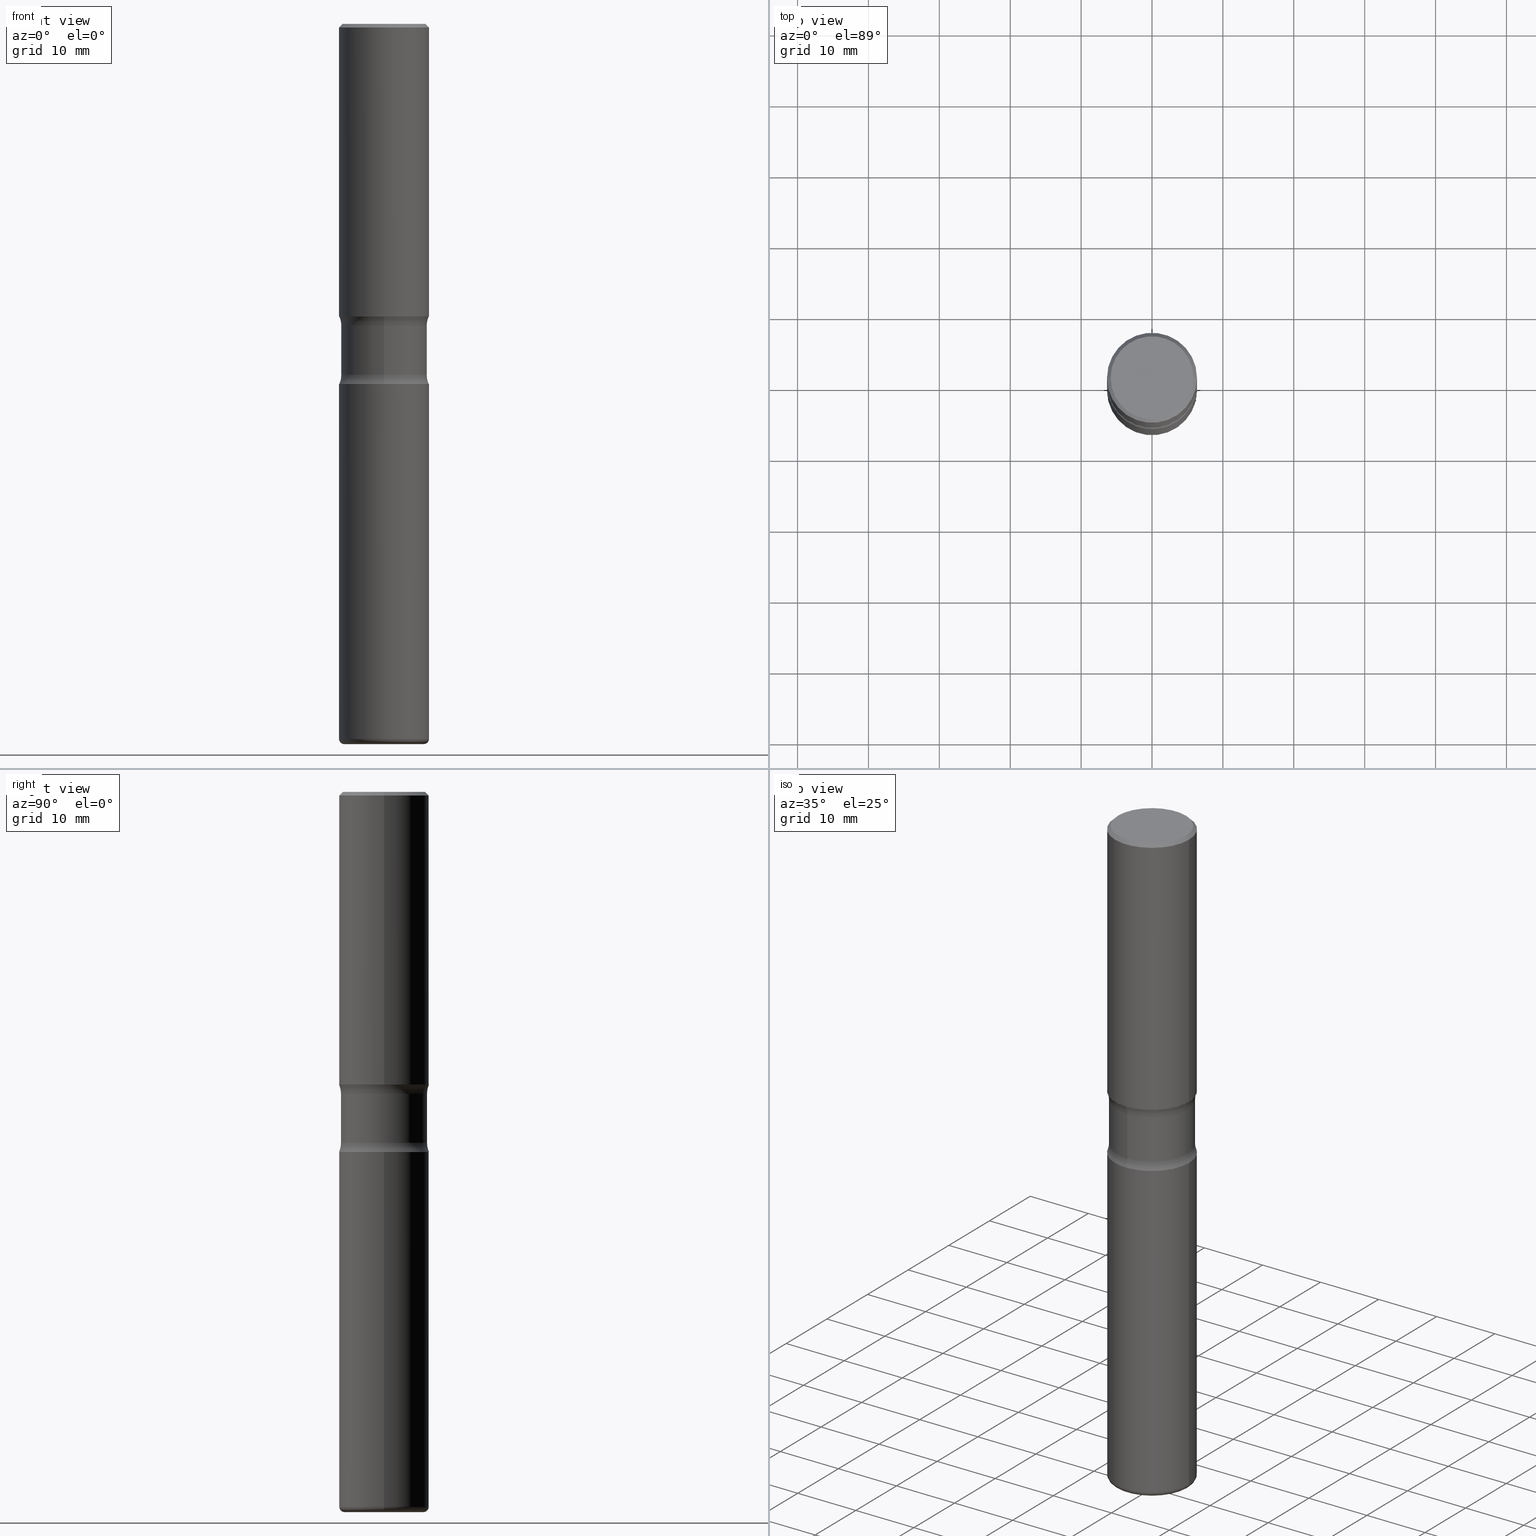
[diagram: canonical four-view strip — front | top / right | iso, engineering-drawing reading convention]
A machine part, canonical four-view strip (front | top / right | iso — engineering-drawing reading convention). The complete STEP part file that produces these views, byte-faithful:
ISO-10303-21;
HEADER;
FILE_DESCRIPTION (( 'STEP AP203' ),
    '1' );
FILE_NAME ('34020.STEP',
    '2024-03-01T22:57:15',
    ( '' ),
    ( '' ),
    'SwSTEP 2.0',
    'SolidWorks 2023',
    '' );
FILE_SCHEMA (( 'CONFIG_CONTROL_DESIGN' ));
ENDSEC;

DATA;
#1 = DIRECTION ( 'NONE',  ( 2.475275669592745842E-29, -3.448796213942141316E-15, -1.000000000000000000 ) ) ;
#2 = CARTESIAN_POINT ( 'NONE',  ( -2.497221271188796963E-15, -0.3640000000000059299, -1.676273774973176867 ) ) ;
#3 = CARTESIAN_POINT ( 'NONE',  ( 9.781875224740549750E-29, -1.396592535537258549E-14, -4.000000000000000888 ) ) ;
#4 = DIRECTION ( 'NONE',  ( -2.445468806185136597E-29, 3.491481338843145583E-15, 1.000000000000000000 ) ) ;
#5 = DIRECTION ( 'NONE',  ( 7.105427357601001859E-15, 1.000000000000000000, -3.491481338843145583E-15 ) ) ;
#6 = CIRCLE ( 'NONE', #519, 0.2390000000000002123 ) ;
#7 = DIRECTION ( 'NONE',  ( -6.982962677686266711E-15, -1.000000000000000000, 3.491481338843145583E-15 ) ) ;
#8 = ORIENTED_EDGE ( 'NONE', *, *, #220, .F. ) ;
#9 = DIRECTION ( 'NONE',  ( -2.445468806185136597E-29, 3.491481338843145583E-15, 1.000000000000000000 ) ) ;
#10 = DATE_AND_TIME ( #147, #461 ) ;
#11 = CARTESIAN_POINT ( 'NONE',  ( -0.2500000000000003331, 1.675911042644705746E-15, -0.02000000000000013572 ) ) ;
#12 = ORIENTED_EDGE ( 'NONE', *, *, #261, .F. ) ;
#13 = LENGTH_MEASURE_WITH_UNIT ( LENGTH_MEASURE( 0.02539999999999999897 ), #367 );
#14 = AXIS2_PLACEMENT_3D ( 'NONE', #319, #226, #490 ) ;
#15 = CARTESIAN_POINT ( 'NONE',  ( 9.781875224740549750E-29, -1.396592535537258549E-14, -4.000000000000000888 ) ) ;
#16 = EDGE_LOOP ( 'NONE', ( #379, #436, #58, #459 ) ) ;
#17 = CIRCLE ( 'NONE', #479, 0.03000000000000019318 ) ;
#18 = EDGE_CURVE ( 'NONE', #292, #20, #105, .T. ) ;
#19 = PERSON_AND_ORGANIZATION_ROLE ( 'creator' ) ;
#20 = VERTEX_POINT ( 'NONE', #300 ) ;
#21 =( CONVERSION_BASED_UNIT ( 'INCH', #13 ) LENGTH_UNIT ( ) NAMED_UNIT ( #255 ) );
#22 = DIRECTION ( 'NONE',  ( -6.982962677686266711E-15, -1.000000000000000000, 0.000000000000000000 ) ) ;
#23 = ORIENTED_EDGE ( 'NONE', *, *, #51, .F. ) ;
#24 = PRODUCT ( '34020', '34020', '', ( #194 ) ) ;
#25 = ADVANCED_FACE ( 'NONE', ( #35 ), #492, .T. ) ;
#26 = CALENDAR_DATE ( 2024, 1, 3 ) ;
#27 = CARTESIAN_POINT ( 'NONE',  ( 4.890937612370274875E-29, -6.982962677686292743E-15, -2.000000000000000444 ) ) ;
#28 = VERTEX_POINT ( 'NONE', #211 ) ;
#29 = CIRCLE ( 'NONE', #419, 0.03000000000000019318 ) ;
#30 = ORIENTED_EDGE ( 'NONE', *, *, #328, .T. ) ;
#31 = AXIS2_PLACEMENT_3D ( 'NONE', #331, #98, #277 ) ;
#32 = ORIENTED_EDGE ( 'NONE', *, *, #559, .T. ) ;
#33 = CALENDAR_DATE ( 2024, 1, 3 ) ;
#34 = CARTESIAN_POINT ( 'NONE',  ( 4.890937612370274875E-29, -6.982962677686292743E-15, -2.000000000000000444 ) ) ;
#35 = FACE_OUTER_BOUND ( 'NONE', #315, .T. ) ;
#36 = EDGE_CURVE ( 'NONE', #288, #381, #471, .T. ) ;
#37 = DIRECTION ( 'NONE',  ( -2.445468806185136597E-29, 3.491481338843145583E-15, 1.000000000000000000 ) ) ;
#38 = ORIENTED_EDGE ( 'NONE', *, *, #441, .F. ) ;
#39 = EDGE_CURVE ( 'NONE', #101, #119, #504, .T. ) ;
#40 = CLOSED_SHELL ( 'NONE', ( #349, #25, #320, #423, #190, #135 ) ) ;
#41 = CIRCLE ( 'NONE', #495, 0.2500000000000004996 ) ;
#42 = DIRECTION ( 'NONE',  ( -6.982962677686267499E-15, -1.000000000000000000, 0.000000000000000000 ) ) ;
#43 = CARTESIAN_POINT ( 'NONE',  ( 0.000000000000000000, 0.000000000000000000, 0.000000000000000000 ) ) ;
#44 = DIRECTION ( 'NONE',  ( 1.000000000000000000, -6.982962677686265922E-15, 4.876176775795935232E-29 ) ) ;
#45 = AXIS2_PLACEMENT_3D ( 'NONE', #442, #361, #524 ) ;
#46 = CC_DESIGN_SECURITY_CLASSIFICATION ( #369, ( #262 ) ) ;
#47 = CARTESIAN_POINT ( 'NONE',  ( 4.765549195098011241E-29, -6.803941249195398607E-15, -1.948726225026822467 ) ) ;
#48 = CYLINDRICAL_SURFACE ( 'NONE', #87, 0.2500000000000005551 ) ;
#49 = CC_DESIGN_PERSON_AND_ORGANIZATION_ASSIGNMENT ( #392, #516, ( #262 ) ) ;
#50 = DIRECTION ( 'NONE',  ( 6.982962677686265922E-15, 1.000000000000000000, -3.448796213942141316E-15 ) ) ;
#51 = EDGE_CURVE ( 'NONE', #20, #292, #307, .T. ) ;
#52 = VECTOR ( 'NONE', #164, 39.37007874015748143 ) ;
#53 = AXIS2_PLACEMENT_3D ( 'NONE', #2, #174, #362 ) ;
#54 = DIRECTION ( 'NONE',  ( 2.475275669592745562E-29, -3.448796213942141316E-15, -1.000000000000000000 ) ) ;
#55 = CARTESIAN_POINT ( 'NONE',  ( 4.890937612370306439E-31, -6.982962677686338448E-17, -0.02000000000000013572 ) ) ;
#56 = ORIENTED_EDGE ( 'NONE', *, *, #534, .F. ) ;
#57 = FACE_OUTER_BOUND ( 'NONE', #414, .T. ) ;
#58 = ORIENTED_EDGE ( 'NONE', *, *, #112, .T. ) ;
#59 = APPROVAL_DATE_TIME ( #235, #360 ) ;
#60 = FACE_OUTER_BOUND ( 'NONE', #16, .T. ) ;
#61 = ORIENTED_EDGE ( 'NONE', *, *, #256, .T. ) ;
#62 = AXIS2_PLACEMENT_3D ( 'NONE', #321, #9, #533 ) ;
#63 = CC_DESIGN_APPROVAL ( #148, ( #262 ) ) ;
#64 = ORIENTED_EDGE ( 'NONE', *, *, #374, .T. ) ;
#65 = APPROVAL_ROLE ( '' ) ;
#66 = CARTESIAN_POINT ( 'NONE',  ( 2.845005195333418602E-29, -2.389991805960624482E-14, -4.000000000000000888 ) ) ;
#67 = ORIENTED_EDGE ( 'NONE', *, *, #238, .T. ) ;
#68 = ORIENTED_EDGE ( 'NONE', *, *, #389, .F. ) ;
#69 = LINE ( 'NONE', #298, #178 ) ;
#70 = ORIENTED_EDGE ( 'NONE', *, *, #36, .T. ) ;
#71 = CARTESIAN_POINT ( 'NONE',  ( 4.890937612370306439E-31, -6.982962677686338448E-17, -0.02000000000000013572 ) ) ;
#72 = DIRECTION ( 'NONE',  ( 1.000000000000000000, -6.982962677686268288E-15, 0.000000000000000000 ) ) ;
#73 = ORIENTED_EDGE ( 'NONE', *, *, #444, .F. ) ;
#74 = AXIS2_PLACEMENT_3D ( 'NONE', #478, #79, #400 ) ;
#75 = ORIENTED_EDGE ( 'NONE', *, *, #464, .F. ) ;
#76 = TOROIDAL_SURFACE ( 'NONE', #473, 0.2200000000000006950, 0.03000000000000019318 ) ;
#77 = DIRECTION ( 'NONE',  ( 0.7071067811865473507, -7.319954787623256045E-15, -0.7071067811865476838 ) ) ;
#78 = FACE_OUTER_BOUND ( 'NONE', #150, .T. ) ;
#79 = DIRECTION ( 'NONE',  ( 1.000000000000000000, -6.860497997771530774E-15, 4.841321621639955375E-29 ) ) ;
#80 = AXIS2_PLACEMENT_3D ( 'NONE', #550, #158, #343 ) ;
#81 = TOROIDAL_SURFACE ( 'NONE', #460, 0.3640000000000000457, 0.1250000000000000555 ) ;
#82 = LINE ( 'NONE', #402, #134 ) ;
#83 = EDGE_CURVE ( 'NONE', #143, #338, #475, .T. ) ;
#84 = MANIFOLD_SOLID_BREP ( 'Body-Move/Copy2[1]', #40 ) ;
#85 = DIRECTION ( 'NONE',  ( 2.475275669592745562E-29, -3.448796213942141316E-15, -1.000000000000000000 ) ) ;
#86 = FACE_OUTER_BOUND ( 'NONE', #278, .T. ) ;
#87 = AXIS2_PLACEMENT_3D ( 'NONE', #270, #217, #364 ) ;
#88 = CIRCLE ( 'NONE', #120, 0.2500000000000004996 ) ;
#89 = CARTESIAN_POINT ( 'NONE',  ( -0.2200000000000006950, -1.229798689653506559E-14, -3.970000000000000639 ) ) ;
#90 = DIRECTION ( 'NONE',  ( 2.475275669592745562E-29, -3.448796213942141316E-15, -1.000000000000000000 ) ) ;
#91 = ADVANCED_FACE ( 'NONE', ( #78 ), #258, .T. ) ;
#92 = CARTESIAN_POINT ( 'NONE',  ( 9.841488951555764877E-29, -1.388055510557057537E-14, -4.000000000000000888 ) ) ;
#93 = DIRECTION ( 'NONE',  ( -2.445468806185136597E-29, 3.491481338843145583E-15, 1.000000000000000000 ) ) ;
#94 = EDGE_LOOP ( 'NONE', ( #56, #115, #61, #68 ) ) ;
#95 = CIRCLE ( 'NONE', #141, 0.2390000000000002123 ) ;
#96 = APPROVAL_PERSON_ORGANIZATION ( #290, #139, #65 ) ;
#97 = CARTESIAN_POINT ( 'NONE',  ( 4.099275227323110604E-29, -5.852678604111005560E-15, -1.676273774973178199 ) ) ;
#98 = DIRECTION ( 'NONE',  ( 0.000000000000000000, 0.000000000000000000, 1.000000000000000000 ) ) ;
#99 = EDGE_CURVE ( 'NONE', #28, #245, #161, .T. ) ;
#100 = FACE_OUTER_BOUND ( 'NONE', #546, .T. ) ;
#101 = VERTEX_POINT ( 'NONE', #353 ) ;
#102 = PERSON_AND_ORGANIZATION ( #395, #268 ) ;
#103 = CARTESIAN_POINT ( 'NONE',  ( 2.541798414677849219E-15, 0.3639999999999933289, -1.948726225026823800 ) ) ;
#104 = PERSON_AND_ORGANIZATION ( #395, #268 ) ;
#105 = CIRCLE ( 'NONE', #487, 0.2500000000000005551 ) ;
#106 = CC_DESIGN_PERSON_AND_ORGANIZATION_ASSIGNMENT ( #191, #247, ( #369 ) ) ;
#107 = DIRECTION ( 'NONE',  ( 2.475275669592745562E-29, -3.448796213942141316E-15, -1.000000000000000000 ) ) ;
#108 = EDGE_LOOP ( 'NONE', ( #197, #301, #466, #327 ) ) ;
#109 = AXIS2_PLACEMENT_3D ( 'NONE', #448, #216, #126 ) ;
#110 =( NAMED_UNIT ( * ) SI_UNIT ( $, .STERADIAN. ) SOLID_ANGLE_UNIT ( ) );
#111 = DIRECTION ( 'NONE',  ( -1.000000000000000000, 6.982962677686265922E-15, -4.876176775795935793E-29 ) ) ;
#112 = EDGE_CURVE ( 'NONE', #119, #456, #218, .T. ) ;
#113 = SHAPE_DEFINITION_REPRESENTATION ( #468, #170 ) ;
#114 = PLANE ( 'NONE',  #488 ) ;
#115 = ORIENTED_EDGE ( 'NONE', *, *, #130, .T. ) ;
#116 = CARTESIAN_POINT ( 'NONE',  ( -0.2300000000000002320, 1.640996229256274294E-15, -3.414809992081464243E-17 ) ) ;
#117 = DIRECTION ( 'NONE',  ( -6.982962677686265922E-15, -1.000000000000000000, 3.448796213942141316E-15 ) ) ;
#118 = ORIENTED_EDGE ( 'NONE', *, *, #427, .F. ) ;
#119 = VERTEX_POINT ( 'NONE', #355 ) ;
#120 = AXIS2_PLACEMENT_3D ( 'NONE', #272, #230, #458 ) ;
#121 = CC_DESIGN_PERSON_AND_ORGANIZATION_ASSIGNMENT ( #412, #19, ( #383 ) ) ;
#122 = DIRECTION ( 'NONE',  ( 2.475275669592745562E-29, -3.448796213942141316E-15, -1.000000000000000000 ) ) ;
#123 = VERTEX_POINT ( 'NONE', #213 ) ;
#124 = CARTESIAN_POINT ( 'NONE',  ( 2.541798414677842119E-15, 0.3639999999999942171, -1.676273774973179753 ) ) ;
#125 = CIRCLE ( 'NONE', #163, 0.2390000000000002123 ) ;
#126 = DIRECTION ( 'NONE',  ( 1.000000000000000000, -6.982962677686266711E-15, 0.000000000000000000 ) ) ;
#127 =( GEOMETRIC_REPRESENTATION_CONTEXT ( 3 ) GLOBAL_UNCERTAINTY_ASSIGNED_CONTEXT ( ( #358 ) ) GLOBAL_UNIT_ASSIGNED_CONTEXT ( ( #21, #532, #110 ) ) REPRESENTATION_CONTEXT ( 'NONE', 'WORKASPACE' ) );
#128 = CIRCLE ( 'NONE', #404, 0.2500000000000004996 ) ;
#129 = CARTESIAN_POINT ( 'NONE',  ( 0.2200000000000006950, -1.539743270429827363E-14, -3.970000000000000639 ) ) ;
#130 = EDGE_CURVE ( 'NONE', #381, #330, #556, .T. ) ;
#131 = CARTESIAN_POINT ( 'NONE',  ( 4.764020884690993624E-29, -6.806129876684274872E-15, -1.948726225026822467 ) ) ;
#132 = EDGE_CURVE ( 'NONE', #382, #245, #560, .T. ) ;
#133 = DIRECTION ( 'NONE',  ( 6.982962677686266711E-15, 1.000000000000000000, -4.572130533329308080E-15 ) ) ;
#134 = VECTOR ( 'NONE', #1, 39.37007874015748143 ) ;
#135 = ADVANCED_FACE ( 'NONE', ( #246 ), #431, .F. ) ;
#136 = FACE_OUTER_BOUND ( 'NONE', #346, .T. ) ;
#137 = DIRECTION ( 'NONE',  ( -1.000000000000000000, 6.982962677686265922E-15, -4.883557194083112340E-29 ) ) ;
#138 = EDGE_LOOP ( 'NONE', ( #494, #188, #280, #23 ) ) ;
#139 = APPROVAL ( #377, 'UNSPECIFIED' ) ;
#140 = CLOSED_SHELL ( 'NONE', ( #205, #318, #344, #408, #265, #486, #195, #181 ) ) ;
#141 = AXIS2_PLACEMENT_3D ( 'NONE', #131, #529, #313 ) ;
#142 = LINE ( 'NONE', #196, #351 ) ;
#143 = VERTEX_POINT ( 'NONE', #116 ) ;
#144 = APPLICATION_PROTOCOL_DEFINITION ( 'international standard', 'config_control_design', 1994, #544 ) ;
#145 = DIRECTION ( 'NONE',  ( 1.000000000000000000, -6.982962677686265922E-15, 4.876176775795935793E-29 ) ) ;
#146 = ORIENTED_EDGE ( 'NONE', *, *, #464, .T. ) ;
#147 = CALENDAR_DATE ( 2024, 1, 3 ) ;
#148 = APPROVAL ( #285, 'UNSPECIFIED' ) ;
#149 = CARTESIAN_POINT ( 'NONE',  ( 3.973886810050846409E-29, -5.673657175620110635E-15, -1.624999999999999778 ) ) ;
#150 = EDGE_LOOP ( 'NONE', ( #38, #251, #30, #499 ) ) ;
#151 = PERSON_AND_ORGANIZATION_ROLE ( 'design_owner' ) ;
#152 = EDGE_CURVE ( 'NONE', #224, #382, #518, .T. ) ;
#153 = DIRECTION ( 'NONE',  ( 1.000000000000000000, -6.982962677686268288E-15, 0.000000000000000000 ) ) ;
#154 = ORIENTED_EDGE ( 'NONE', *, *, #132, .T. ) ;
#155 = AXIS2_PLACEMENT_3D ( 'NONE', #43, #314, #44 ) ;
#156 = COORDINATED_UNIVERSAL_TIME_OFFSET ( 5, 0, .BEHIND. ) ;
#157 = CARTESIAN_POINT ( 'NONE',  ( 1.745740669421610459E-15, 0.2499999999999948652, -1.625000000000000888 ) ) ;
#158 = DIRECTION ( 'NONE',  ( 2.438088387897960049E-29, -3.491481338843145188E-15, -1.000000000000000000 ) ) ;
#159 = DIRECTION ( 'NONE',  ( -2.445468806185136877E-29, 3.491481338843145188E-15, 1.000000000000000000 ) ) ;
#160 = ORIENTED_EDGE ( 'NONE', *, *, #130, .F. ) ;
#161 = LINE ( 'NONE', #393, #185 ) ;
#162 = ADVANCED_FACE ( 'NONE', ( #136 ), #483, .T. ) ;
#163 = AXIS2_PLACEMENT_3D ( 'NONE', #264, #525, #269 ) ;
#164 = DIRECTION ( 'NONE',  ( -0.7071067811865473507, 2.468850131082255088E-15, -0.7071067811865476838 ) ) ;
#165 = VECTOR ( 'NONE', #159, 39.37007874015748143 ) ;
#166 = ORIENTED_EDGE ( 'NONE', *, *, #476, .T. ) ;
#167 = CARTESIAN_POINT ( 'NONE',  ( 0.2500000000000004996, -1.745740669421570030E-15, 1.219044193948986190E-29 ) ) ;
#168 = FACE_OUTER_BOUND ( 'NONE', #386, .T. ) ;
#169 = AXIS2_PLACEMENT_3D ( 'NONE', #27, #465, #72 ) ;
#170 = ADVANCED_BREP_SHAPE_REPRESENTATION ( '34020', ( #84, #279, #470, #31 ), #127 ) ;
#171 = CARTESIAN_POINT ( 'NONE',  ( -1.715124499442846997E-15, -0.2500000000000062728, -1.624999999999998668 ) ) ;
#172 = FACE_OUTER_BOUND ( 'NONE', #521, .T. ) ;
#173 = ORIENTED_EDGE ( 'NONE', *, *, #99, .F. ) ;
#174 = DIRECTION ( 'NONE',  ( 1.000000000000000000, -6.860497997771530774E-15, 4.841321621639955375E-29 ) ) ;
#175 = FACE_OUTER_BOUND ( 'NONE', #176, .T. ) ;
#176 = EDGE_LOOP ( 'NONE', ( #73, #295, #193, #357 ) ) ;
#177 = AXIS2_PLACEMENT_3D ( 'NONE', #399, #259, #257 ) ;
#178 = VECTOR ( 'NONE', #429, 39.37007874015748143 ) ;
#179 = PLANE ( 'NONE',  #260 ) ;
#180 = EDGE_LOOP ( 'NONE', ( #146, #199 ) ) ;
#181 = ADVANCED_FACE ( 'NONE', ( #175 ), #263, .T. ) ;
#182 = CARTESIAN_POINT ( 'NONE',  ( 0.2500000000000005551, -7.419397845041682046E-15, -1.624999999999999778 ) ) ;
#183 = APPROVAL_ROLE ( '' ) ;
#184 = DIRECTION ( 'NONE',  ( 2.438088387897960049E-29, -3.491481338843145188E-15, -1.000000000000000000 ) ) ;
#185 = VECTOR ( 'NONE', #77, 39.37007874015748143 ) ;
#186 = TOROIDAL_SURFACE ( 'NONE', #317, 0.3640000000000000457, 0.1250000000000000555 ) ;
#187 = CARTESIAN_POINT ( 'NONE',  ( 4.099275227323110604E-29, -5.852678604111005560E-15, -1.676273774973178199 ) ) ;
#188 = ORIENTED_EDGE ( 'NONE', *, *, #220, .T. ) ;
#189 = COORDINATED_UNIVERSAL_TIME_OFFSET ( 5, 0, .BEHIND. ) ;
#190 = ADVANCED_FACE ( 'NONE', ( #86 ), #48, .T. ) ;
#191 = PERSON_AND_ORGANIZATION ( #395, #268 ) ;
#192 = CARTESIAN_POINT ( 'NONE',  ( 4.890937612370306439E-31, -6.982962677686338448E-17, -0.02000000000000013572 ) ) ;
#193 = ORIENTED_EDGE ( 'NONE', *, *, #273, .T. ) ;
#194 = MECHANICAL_CONTEXT ( 'NONE', #276, 'mechanical' ) ;
#195 = ADVANCED_FACE ( 'NONE', ( #446 ), #387, .F. ) ;
#196 = CARTESIAN_POINT ( 'NONE',  ( 0.2500000000000005551, -1.745740669421570622E-15, 1.219044193948986471E-29 ) ) ;
#197 = ORIENTED_EDGE ( 'NONE', *, *, #214, .T. ) ;
#198 = APPROVAL_DATE_TIME ( #477, #148 ) ;
#199 = ORIENTED_EDGE ( 'NONE', *, *, #453, .T. ) ;
#200 = AXIS2_PLACEMENT_3D ( 'NONE', #3, #4, #407 ) ;
#201 = DIRECTION ( 'NONE',  ( 1.000000000000000000, -6.982962677686269077E-15, 4.883557194083114022E-29 ) ) ;
#202 = VERTEX_POINT ( 'NONE', #171 ) ;
#203 = LOCAL_TIME ( 17, 57, 15.00000000000000000, #340 ) ;
#204 = VERTEX_POINT ( 'NONE', #489 ) ;
#205 = ADVANCED_FACE ( 'NONE', ( #440 ), #371, .T. ) ;
#206 = CARTESIAN_POINT ( 'NONE',  ( 0.2500000000000004996, -8.728703347107863365E-15, -2.000000000000000444 ) ) ;
#207 = ORIENTED_EDGE ( 'NONE', *, *, #152, .T. ) ;
#208 = CARTESIAN_POINT ( 'NONE',  ( 9.708511160554993993E-29, -1.386118091520729054E-14, -3.970000000000000639 ) ) ;
#209 = CARTESIAN_POINT ( 'NONE',  ( 9.708511160554993993E-29, -1.386118091520729054E-14, -3.970000000000000639 ) ) ;
#210 = AXIS2_PLACEMENT_3D ( 'NONE', #445, #223, #133 ) ;
#211 = CARTESIAN_POINT ( 'NONE',  ( 0.2300000000000002320, -1.681434332853601180E-15, -3.414809992079179628E-17 ) ) ;
#212 = AXIS2_PLACEMENT_3D ( 'NONE', #390, #434, #549 ) ;
#213 = CARTESIAN_POINT ( 'NONE',  ( 1.668928079967066472E-15, 0.2389999999999934122, -1.948726225026823355 ) ) ;
#214 = EDGE_CURVE ( 'NONE', #119, #101, #125, .T. ) ;
#215 = CARTESIAN_POINT ( 'NONE',  ( 0.2500000000000003331, -1.784954126219748555E-15, -0.02000000000000013572 ) ) ;
#216 = DIRECTION ( 'NONE',  ( -2.445468806185136597E-29, 3.491481338843145583E-15, 1.000000000000000000 ) ) ;
#217 = DIRECTION ( 'NONE',  ( -2.445468806185136597E-29, 3.491481338843145583E-15, 1.000000000000000000 ) ) ;
#218 = CIRCLE ( 'NONE', #410, 0.1250000000000000555 ) ;
#219 = TOROIDAL_SURFACE ( 'NONE', #335, 0.3640000000000001568, 0.1250000000000000000 ) ;
#220 = EDGE_CURVE ( 'NONE', #204, #543, #449, .T. ) ;
#221 = CARTESIAN_POINT ( 'NONE',  ( 3.973886810050846409E-29, -5.673657175620110635E-15, -1.624999999999999778 ) ) ;
#222 = LINE ( 'NONE', #225, #528 ) ;
#223 = DIRECTION ( 'NONE',  ( 2.475275669592745562E-29, -3.448796213942141316E-15, -1.000000000000000000 ) ) ;
#224 = VERTEX_POINT ( 'NONE', #531 ) ;
#225 = CARTESIAN_POINT ( 'NONE',  ( -0.2500000000000005551, 1.776356839400254409E-15, -1.229733772563729108E-29 ) ) ;
#226 = DIRECTION ( 'NONE',  ( -2.445468806185136597E-29, 3.491481338843145583E-15, 1.000000000000000000 ) ) ;
#227 = ADVANCED_FACE ( 'NONE', ( #172 ), #409, .T. ) ;
#228 = AXIS2_PLACEMENT_3D ( 'NONE', #55, #244, #545 ) ;
#229 = PLANE ( 'NONE',  #297 ) ;
#230 = DIRECTION ( 'NONE',  ( 2.475275669592745562E-29, -3.448796213942141316E-15, -1.000000000000000000 ) ) ;
#231 = ORIENTED_EDGE ( 'NONE', *, *, #18, .F. ) ;
#232 = PRODUCT_RELATED_PRODUCT_CATEGORY ( 'detail', '', ( #24 ) ) ;
#233 = CARTESIAN_POINT ( 'NONE',  ( 3.962709236272992942E-29, -5.689664097457987531E-15, -1.624999999999999778 ) ) ;
#234 = ORIENTED_EDGE ( 'NONE', *, *, #152, .F. ) ;
#235 = DATE_AND_TIME ( #457, #406 ) ;
#236 = AXIS2_PLACEMENT_3D ( 'NONE', #345, #514, #117 ) ;
#237 = DIRECTION ( 'NONE',  ( -2.445468806185136877E-29, 3.491481338843145188E-15, 1.000000000000000000 ) ) ;
#238 = EDGE_CURVE ( 'NONE', #204, #20, #29, .T. ) ;
#239 = ORIENTED_EDGE ( 'NONE', *, *, #365, .T. ) ;
#240 = DIRECTION ( 'NONE',  ( -1.000000000000000000, 6.982962677686265922E-15, -4.876176775795935793E-29 ) ) ;
#241 = ORIENTED_EDGE ( 'NONE', *, *, #513, .F. ) ;
#242 = PERSON_AND_ORGANIZATION ( #395, #268 ) ;
#243 = SECURITY_CLASSIFICATION_LEVEL ( 'unclassified' ) ;
#244 = DIRECTION ( 'NONE',  ( -2.445468806185136597E-29, 3.491481338843145583E-15, 1.000000000000000000 ) ) ;
#245 = VERTEX_POINT ( 'NONE', #215 ) ;
#246 = FACE_OUTER_BOUND ( 'NONE', #180, .T. ) ;
#247 = PERSON_AND_ORGANIZATION_ROLE ( 'classification_officer' ) ;
#248 = AXIS2_PLACEMENT_3D ( 'NONE', #209, #558, #520 ) ;
#249 = CIRCLE ( 'NONE', #109, 0.2500000000000005551 ) ;
#250 = CARTESIAN_POINT ( 'NONE',  ( -0.2500000000000004996, 1.776356839400254015E-15, -1.229733772563728688E-29 ) ) ;
#251 = ORIENTED_EDGE ( 'NONE', *, *, #99, .T. ) ;
#252 = DIRECTION ( 'NONE',  ( 1.000000000000000000, -6.982962677686270655E-15, 0.000000000000000000 ) ) ;
#253 = ORIENTED_EDGE ( 'NONE', *, *, #441, .T. ) ;
#254 = CARTESIAN_POINT ( 'NONE',  ( 9.708511160554993993E-29, -1.386118091520729054E-14, -3.970000000000000639 ) ) ;
#255 = DIMENSIONAL_EXPONENTS ( 1.000000000000000000, 0.000000000000000000, 0.000000000000000000, 0.000000000000000000, 0.000000000000000000, 0.000000000000000000, 0.000000000000000000 ) ;
#256 = EDGE_CURVE ( 'NONE', #330, #123, #95, .T. ) ;
#257 = DIRECTION ( 'NONE',  ( 6.982962677686265133E-15, 1.000000000000000000, -3.278217592397109157E-15 ) ) ;
#258 = CONICAL_SURFACE ( 'NONE', #334, 0.2500000000000003331, 0.7853981633974480570 ) ;
#259 = DIRECTION ( 'NONE',  ( 2.475275669592745562E-29, -3.448796213942141316E-15, -1.000000000000000000 ) ) ;
#260 = AXIS2_PLACEMENT_3D ( 'NONE', #308, #480, #311 ) ;
#261 = EDGE_CURVE ( 'NONE', #543, #292, #17, .T. ) ;
#262 = PRODUCT_DEFINITION_FORMATION_WITH_SPECIFIED_SOURCE ( 'ANY', '', #24, .NOT_KNOWN. ) ;
#263 = CYLINDRICAL_SURFACE ( 'NONE', #306, 0.2390000000000001568 ) ;
#264 = CARTESIAN_POINT ( 'NONE',  ( 4.089625963952275315E-29, -5.866496898460006191E-15, -1.676273774973178199 ) ) ;
#265 = ADVANCED_FACE ( 'NONE', ( #266 ), #179, .F. ) ;
#266 = FACE_OUTER_BOUND ( 'NONE', #296, .T. ) ;
#267 = CIRCLE ( 'NONE', #212, 0.2300000000000002320 ) ;
#268 = ORGANIZATION ( 'UNSPECIFIED', 'UNSPECIFIED', '' ) ;
#269 = DIRECTION ( 'NONE',  ( 6.982962677686265133E-15, 1.000000000000000000, -3.429097899996980271E-15 ) ) ;
#270 = CARTESIAN_POINT ( 'NONE',  ( 0.000000000000000000, 0.000000000000000000, 0.000000000000000000 ) ) ;
#271 = CC_DESIGN_PERSON_AND_ORGANIZATION_ASSIGNMENT ( #428, #424, ( #262 ) ) ;
#272 = CARTESIAN_POINT ( 'NONE',  ( 3.962709236272992942E-29, -5.689664097457987531E-15, -1.624999999999999778 ) ) ;
#273 = EDGE_CURVE ( 'NONE', #119, #123, #82, .T. ) ;
#274 = LOCAL_TIME ( 17, 57, 15.00000000000000000, #302 ) ;
#275 = FACE_OUTER_BOUND ( 'NONE', #138, .T. ) ;
#276 = APPLICATION_CONTEXT ( 'configuration controlled 3d designs of mechanical parts and assemblies' ) ;
#277 = DIRECTION ( 'NONE',  ( 1.000000000000000000, 0.000000000000000000, 0.000000000000000000 ) ) ;
#278 = EDGE_LOOP ( 'NONE', ( #241, #539, #350, #391 ) ) ;
#279 = MANIFOLD_SOLID_BREP ( 'Body-Move/Copy2[2]', #443 ) ;
#280 = ORIENTED_EDGE ( 'NONE', *, *, #261, .T. ) ;
#281 = COORDINATED_UNIVERSAL_TIME_OFFSET ( 5, 0, .BEHIND. ) ;
#282 = ADVANCED_FACE ( 'NONE', ( #168 ), #438, .T. ) ;
#283 = DIRECTION ( 'NONE',  ( -2.438088387897960049E-29, 3.491481338843145188E-15, 1.000000000000000000 ) ) ;
#284 = ORIENTED_EDGE ( 'NONE', *, *, #293, .F. ) ;
#285 = APPROVAL_STATUS ( 'not_yet_approved' ) ;
#286 = CIRCLE ( 'NONE', #169, 0.2500000000000004996 ) ;
#287 = CARTESIAN_POINT ( 'NONE',  ( 0.000000000000000000, 0.000000000000000000, 0.000000000000000000 ) ) ;
#288 = VERTEX_POINT ( 'NONE', #450 ) ;
#289 = APPLICATION_PROTOCOL_DEFINITION ( 'international standard', 'config_control_design', 1994, #276 ) ;
#290 = PERSON_AND_ORGANIZATION ( #395, #268 ) ;
#291 = FACE_OUTER_BOUND ( 'NONE', #342, .T. ) ;
#292 = VERTEX_POINT ( 'NONE', #413 ) ;
#293 = EDGE_CURVE ( 'NONE', #292, #451, #142, .T. ) ;
#294 = CARTESIAN_POINT ( 'NONE',  ( 1.606081415867843039E-15, 0.2300000000000002320, -8.201147578943259875E-16 ) ) ;
#295 = ORIENTED_EDGE ( 'NONE', *, *, #39, .T. ) ;
#296 = EDGE_LOOP ( 'NONE', ( #482, #416 ) ) ;
#297 = AXIS2_PLACEMENT_3D ( 'NONE', #149, #283, #145 ) ;
#298 = CARTESIAN_POINT ( 'NONE',  ( -1.639659021467298523E-15, -0.2390000000000140346, -3.999999999999999556 ) ) ;
#299 = VERTEX_POINT ( 'NONE', #455 ) ;
#300 = CARTESIAN_POINT ( 'NONE',  ( -0.2500000000000007216, -1.208482407580703534E-14, -3.970000000000000639 ) ) ;
#301 = ORIENTED_EDGE ( 'NONE', *, *, #444, .T. ) ;
#302 = COORDINATED_UNIVERSAL_TIME_OFFSET ( 5, 0, .BEHIND. ) ;
#303 = DIRECTION ( 'NONE',  ( 1.000000000000000000, -6.982962677686269077E-15, 4.883557194083114022E-29 ) ) ;
#304 = EDGE_CURVE ( 'NONE', #202, #456, #88, .T. ) ;
#305 = DIRECTION ( 'NONE',  ( 6.982962677686265133E-15, 1.000000000000000000, -3.429097899996980271E-15 ) ) ;
#306 = AXIS2_PLACEMENT_3D ( 'NONE', #92, #527, #363 ) ;
#307 = CIRCLE ( 'NONE', #248, 0.2500000000000005551 ) ;
#308 = CARTESIAN_POINT ( 'NONE',  ( 3.973886810050846409E-29, -5.673657175620110635E-15, -1.624999999999999778 ) ) ;
#309 = AXIS2_PLACEMENT_3D ( 'NONE', #103, #137, #22 ) ;
#310 = CARTESIAN_POINT ( 'NONE',  ( 0.2200000000000006950, -1.550217714446357016E-14, -4.000000000000000888 ) ) ;
#311 = DIRECTION ( 'NONE',  ( 6.982962677686265922E-15, 1.000000000000000000, -3.448796213942141316E-15 ) ) ;
#312 = DIRECTION ( 'NONE',  ( 6.982962677686265133E-15, 1.000000000000000000, -3.278217592397109157E-15 ) ) ;
#313 = DIRECTION ( 'NONE',  ( 6.982962677686265133E-15, 1.000000000000000000, -3.429097899996980271E-15 ) ) ;
#314 = DIRECTION ( 'NONE',  ( -2.445468806185136597E-29, 3.491481338843145583E-15, 1.000000000000000000 ) ) ;
#315 = EDGE_LOOP ( 'NONE', ( #239, #67, #231, #12 ) ) ;
#316 = AXIS2_PLACEMENT_3D ( 'NONE', #208, #439, #303 ) ;
#317 = AXIS2_PLACEMENT_3D ( 'NONE', #187, #462, #496 ) ;
#318 = ADVANCED_FACE ( 'NONE', ( #498 ), #219, .F. ) ;
#319 = CARTESIAN_POINT ( 'NONE',  ( 0.000000000000000000, 0.000000000000000000, 0.000000000000000000 ) ) ;
#320 = ADVANCED_FACE ( 'NONE', ( #100 ), #535, .T. ) ;
#321 = CARTESIAN_POINT ( 'NONE',  ( 8.350811314681758556E-46, -1.192274536304357760E-31, -3.414809992080329023E-17 ) ) ;
#322 = DIRECTION ( 'NONE',  ( 1.000000000000000000, -6.982962677686266711E-15, 0.000000000000000000 ) ) ;
#323 = AXIS2_PLACEMENT_3D ( 'NONE', #192, #93, #384 ) ;
#324 = LOCAL_TIME ( 17, 57, 15.00000000000000000, #156 ) ;
#325 = DESIGN_CONTEXT ( 'detailed design', #544, 'design' ) ;
#326 = DIRECTION ( 'NONE',  ( 2.475275669592745562E-29, -3.448796213942141316E-15, -1.000000000000000000 ) ) ;
#327 = ORIENTED_EDGE ( 'NONE', *, *, #273, .F. ) ;
#328 = EDGE_CURVE ( 'NONE', #245, #338, #398, .T. ) ;
#329 = DIRECTION ( 'NONE',  ( 1.000000000000000000, -6.982962677686266711E-15, 4.876176775795935232E-29 ) ) ;
#330 = VERTEX_POINT ( 'NONE', #541 ) ;
#331 = CARTESIAN_POINT ( 'NONE',  ( 0.000000000000000000, 0.000000000000000000, 0.000000000000000000 ) ) ;
#332 = DIRECTION ( 'NONE',  ( 2.475275669592745562E-29, -3.448796213942141316E-15, -1.000000000000000000 ) ) ;
#333 = ORIENTED_EDGE ( 'NONE', *, *, #328, .F. ) ;
#334 = AXIS2_PLACEMENT_3D ( 'NONE', #71, #554, #474 ) ;
#335 = AXIS2_PLACEMENT_3D ( 'NONE', #372, #326, #493 ) ;
#336 = CC_DESIGN_APPROVAL ( #139, ( #369 ) ) ;
#337 = LINE ( 'NONE', #250, #165 ) ;
#338 = VERTEX_POINT ( 'NONE', #11 ) ;
#339 = ORIENTED_EDGE ( 'NONE', *, *, #18, .T. ) ;
#340 = COORDINATED_UNIVERSAL_TIME_OFFSET ( 5, 0, .BEHIND. ) ;
#341 = FACE_OUTER_BOUND ( 'NONE', #509, .T. ) ;
#342 = EDGE_LOOP ( 'NONE', ( #70, #547 ) ) ;
#343 = DIRECTION ( 'NONE',  ( -1.000000000000000000, 6.982962677686265922E-15, -4.876176775795935793E-29 ) ) ;
#344 = ADVANCED_FACE ( 'NONE', ( #380 ), #186, .F. ) ;
#345 = CARTESIAN_POINT ( 'NONE',  ( 1.838714799431134984E-29, -1.135391946754910364E-14, -2.000000000000000444 ) ) ;
#346 = EDGE_LOOP ( 'NONE', ( #385, #207, #154, #118 ) ) ;
#347 = APPROVAL_ROLE ( '' ) ;
#348 = ORIENTED_EDGE ( 'NONE', *, *, #132, .F. ) ;
#349 = ADVANCED_FACE ( 'NONE', ( #57 ), #454, .T. ) ;
#350 = ORIENTED_EDGE ( 'NONE', *, *, #293, .T. ) ;
#351 = VECTOR ( 'NONE', #237, 39.37007874015748143 ) ;
#352 = APPROVAL_PERSON_ORGANIZATION ( #242, #360, #183 ) ;
#353 = CARTESIAN_POINT ( 'NONE',  ( -1.677391760455101849E-15, -0.2390000000000060687, -1.676273774973177533 ) ) ;
#354 = EDGE_CURVE ( 'NONE', #456, #202, #128, .T. ) ;
#355 = CARTESIAN_POINT ( 'NONE',  ( 1.668928079967059964E-15, 0.2389999999999943281, -1.676273774973179087 ) ) ;
#356 = ORIENTED_EDGE ( 'NONE', *, *, #401, .F. ) ;
#357 = ORIENTED_EDGE ( 'NONE', *, *, #256, .F. ) ;
#358 = UNCERTAINTY_MEASURE_WITH_UNIT (LENGTH_MEASURE( 1.000000000000000082E-05 ), #21, 'distance_accuracy_value', 'NONE');
#359 = AXIS2_PLACEMENT_3D ( 'NONE', #66, #184, #240 ) ;
#360 = APPROVAL ( #417, 'UNSPECIFIED' ) ;
#361 = DIRECTION ( 'NONE',  ( 2.445468806185136597E-29, -3.491481338843145583E-15, -1.000000000000000000 ) ) ;
#362 = DIRECTION ( 'NONE',  ( 6.860497997771530774E-15, 1.000000000000000000, 0.000000000000000000 ) ) ;
#363 = DIRECTION ( 'NONE',  ( 6.982962677686266711E-15, 1.000000000000000000, -4.572130533329308080E-15 ) ) ;
#364 = DIRECTION ( 'NONE',  ( 1.000000000000000000, -6.982962677686266711E-15, 4.876176775795935232E-29 ) ) ;
#365 = EDGE_CURVE ( 'NONE', #543, #204, #368, .T. ) ;
#366 = DIRECTION ( 'NONE',  ( -1.000000000000000000, 7.105427357601009747E-15, 0.000000000000000000 ) ) ;
#367 =( LENGTH_UNIT ( ) NAMED_UNIT ( * ) SI_UNIT ( $, .METRE. ) );
#368 = CIRCLE ( 'NONE', #557, 0.2200000000000006950 ) ;
#369 = SECURITY_CLASSIFICATION ( '', '', #243 ) ;
#370 = ADVANCED_FACE ( 'NONE', ( #538 ), #229, .F. ) ;
#371 = CYLINDRICAL_SURFACE ( 'NONE', #210, 0.2390000000000001568 ) ;
#372 = CARTESIAN_POINT ( 'NONE',  ( 4.765549195098011241E-29, -6.803941249195398607E-15, -1.948726225026822467 ) ) ;
#373 = ORIENTED_EDGE ( 'NONE', *, *, #39, .F. ) ;
#374 = EDGE_CURVE ( 'NONE', #123, #330, #6, .T. ) ;
#375 = AXIS2_PLACEMENT_3D ( 'NONE', #396, #122, #305 ) ;
#376 = APPROVAL_PERSON_ORGANIZATION ( #104, #148, #347 ) ;
#377 = APPROVAL_STATUS ( 'not_yet_approved' ) ;
#378 = DIRECTION ( 'NONE',  ( -2.445468806185136597E-29, 3.491481338843145583E-15, 1.000000000000000000 ) ) ;
#379 = ORIENTED_EDGE ( 'NONE', *, *, #559, .F. ) ;
#380 = FACE_OUTER_BOUND ( 'NONE', #515, .T. ) ;
#381 = VERTEX_POINT ( 'NONE', #411 ) ;
#382 = VERTEX_POINT ( 'NONE', #182 ) ;
#383 = PRODUCT_DEFINITION ( 'UNKNOWN', '', #262, #325 ) ;
#384 = DIRECTION ( 'NONE',  ( 1.000000000000000000, -6.982962677686266711E-15, 0.000000000000000000 ) ) ;
#385 = ORIENTED_EDGE ( 'NONE', *, *, #476, .F. ) ;
#386 = EDGE_LOOP ( 'NONE', ( #173, #356, #435, #426 ) ) ;
#387 = TOROIDAL_SURFACE ( 'NONE', #418, 0.3640000000000001568, 0.1250000000000000000 ) ;
#388 = CIRCLE ( 'NONE', #62, 0.2300000000000002320 ) ;
#389 = EDGE_CURVE ( 'NONE', #288, #123, #452, .T. ) ;
#390 = CARTESIAN_POINT ( 'NONE',  ( 8.350811314681758556E-46, -1.192274536304357760E-31, -3.414809992080329023E-17 ) ) ;
#391 = ORIENTED_EDGE ( 'NONE', *, *, #453, .F. ) ;
#392 = PERSON_AND_ORGANIZATION ( #395, #268 ) ;
#393 = CARTESIAN_POINT ( 'NONE',  ( 0.2500000000000003331, -1.784954126219748555E-15, -0.02000000000000013572 ) ) ;
#394 = DIRECTION ( 'NONE',  ( -2.445468806185136597E-29, 3.491481338843145583E-15, 1.000000000000000000 ) ) ;
#395 = PERSON ( 'UNSPECIFIED', 'UNSPECIFIED', 'UNSPECIFIED', ('UNSPECIFIED'), ('UNSPECIFIED'), ('UNSPECIFIED') ) ;
#396 = CARTESIAN_POINT ( 'NONE',  ( 4.089625963952275315E-29, -5.866496898460006191E-15, -1.676273774973178199 ) ) ;
#397 = VECTOR ( 'NONE', #467, 39.37007874015748143 ) ;
#398 = CIRCLE ( 'NONE', #323, 0.2500000000000003331 ) ;
#399 = CARTESIAN_POINT ( 'NONE',  ( 4.890937612370274875E-29, -6.982962677686292743E-15, -2.000000000000000444 ) ) ;
#400 = DIRECTION ( 'NONE',  ( 6.860497997771529985E-15, 1.000000000000000000, 0.000000000000000000 ) ) ;
#401 = EDGE_CURVE ( 'NONE', #143, #28, #388, .T. ) ;
#402 = CARTESIAN_POINT ( 'NONE',  ( 1.668928079967117156E-15, 0.2389999999999863067, -4.000000000000001776 ) ) ;
#403 = DIRECTION ( 'NONE',  ( -2.445468806185136877E-29, 3.491481338843145188E-15, 1.000000000000000000 ) ) ;
#404 = AXIS2_PLACEMENT_3D ( 'NONE', #233, #54, #415 ) ;
#405 = DIRECTION ( 'NONE',  ( 1.000000000000000000, -6.982962677686266711E-15, 0.000000000000000000 ) ) ;
#406 = LOCAL_TIME ( 17, 57, 15.00000000000000000, #281 ) ;
#407 = DIRECTION ( 'NONE',  ( 1.000000000000000000, -6.982962677686266711E-15, 0.000000000000000000 ) ) ;
#408 = ADVANCED_FACE ( 'NONE', ( #60 ), #81, .F. ) ;
#409 = CYLINDRICAL_SURFACE ( 'NONE', #155, 0.2500000000000004996 ) ;
#410 = AXIS2_PLACEMENT_3D ( 'NONE', #124, #512, #42 ) ;
#411 = CARTESIAN_POINT ( 'NONE',  ( -1.715124499442837334E-15, -0.2500000000000074940, -1.999999999999999334 ) ) ;
#412 = PERSON_AND_ORGANIZATION ( #395, #268 ) ;
#413 = CARTESIAN_POINT ( 'NONE',  ( 0.2500000000000007216, -1.560692158462886037E-14, -3.970000000000000639 ) ) ;
#414 = EDGE_LOOP ( 'NONE', ( #339, #472, #75, #284 ) ) ;
#415 = DIRECTION ( 'NONE',  ( 6.982962677686265922E-15, 1.000000000000000000, -3.278217592397109157E-15 ) ) ;
#416 = ORIENTED_EDGE ( 'NONE', *, *, #304, .F. ) ;
#417 = APPROVAL_STATUS ( 'not_yet_approved' ) ;
#418 = AXIS2_PLACEMENT_3D ( 'NONE', #47, #85, #50 ) ;
#419 = AXIS2_PLACEMENT_3D ( 'NONE', #89, #5, #366 ) ;
#420 = CC_DESIGN_APPROVAL ( #360, ( #383 ) ) ;
#421 = DIRECTION ( 'NONE',  ( -2.445468806185136597E-29, 3.491481338843145583E-15, 1.000000000000000000 ) ) ;
#422 = EDGE_LOOP ( 'NONE', ( #160, #542, #508, #64 ) ) ;
#423 = ADVANCED_FACE ( 'NONE', ( #275 ), #76, .T. ) ;
#424 = PERSON_AND_ORGANIZATION_ROLE ( 'design_supplier' ) ;
#425 = CARTESIAN_POINT ( 'NONE',  ( 4.764020884690993624E-29, -6.806129876684274872E-15, -1.948726225026822467 ) ) ;
#426 = ORIENTED_EDGE ( 'NONE', *, *, #427, .T. ) ;
#427 = EDGE_CURVE ( 'NONE', #338, #245, #432, .T. ) ;
#428 = PERSON_AND_ORGANIZATION ( #395, #268 ) ;
#429 = DIRECTION ( 'NONE',  ( 2.475275669592745842E-29, -3.448796213942141316E-15, -1.000000000000000000 ) ) ;
#430 = ORIENTED_EDGE ( 'NONE', *, *, #540, .F. ) ;
#431 = PLANE ( 'NONE',  #80 ) ;
#432 = CIRCLE ( 'NONE', #228, 0.2500000000000003331 ) ;
#433 = DATE_AND_TIME ( #26, #324 ) ;
#434 = DIRECTION ( 'NONE',  ( -2.445468806185136597E-29, 3.491481338843145583E-15, 1.000000000000000000 ) ) ;
#435 = ORIENTED_EDGE ( 'NONE', *, *, #83, .T. ) ;
#436 = ORIENTED_EDGE ( 'NONE', *, *, #214, .F. ) ;
#437 = CALENDAR_DATE ( 2024, 1, 3 ) ;
#438 = CONICAL_SURFACE ( 'NONE', #45, 0.2500000000000003331, 0.7853981633974480570 ) ;
#439 = DIRECTION ( 'NONE',  ( -2.445468806185136597E-29, 3.491481338843145583E-15, 1.000000000000000000 ) ) ;
#440 = FACE_OUTER_BOUND ( 'NONE', #108, .T. ) ;
#441 = EDGE_CURVE ( 'NONE', #28, #143, #267, .T. ) ;
#442 = CARTESIAN_POINT ( 'NONE',  ( 4.890937612370306439E-31, -6.982962677686338448E-17, -0.02000000000000013572 ) ) ;
#443 = CLOSED_SHELL ( 'NONE', ( #227, #91, #282, #481, #370, #162 ) ) ;
#444 = EDGE_CURVE ( 'NONE', #101, #330, #69, .T. ) ;
#445 = CARTESIAN_POINT ( 'NONE',  ( 9.841488951555764877E-29, -1.388055510557057537E-14, -4.000000000000000888 ) ) ;
#446 = FACE_OUTER_BOUND ( 'NONE', #422, .T. ) ;
#447 = DIRECTION ( 'NONE',  ( -2.445468806185136597E-29, 3.491481338843145583E-15, 1.000000000000000000 ) ) ;
#448 = CARTESIAN_POINT ( 'NONE',  ( 3.973886810050846409E-29, -5.673657175620110635E-15, -1.624999999999999778 ) ) ;
#449 = CIRCLE ( 'NONE', #200, 0.2200000000000006950 ) ;
#450 = CARTESIAN_POINT ( 'NONE',  ( 1.745740669421619531E-15, 0.2499999999999935330, -2.000000000000001776 ) ) ;
#451 = VERTEX_POINT ( 'NONE', #206 ) ;
#452 = CIRCLE ( 'NONE', #309, 0.1250000000000000000 ) ;
#453 = EDGE_CURVE ( 'NONE', #299, #451, #286, .T. ) ;
#454 = CYLINDRICAL_SURFACE ( 'NONE', #536, 0.2500000000000005551 ) ;
#455 = CARTESIAN_POINT ( 'NONE',  ( -0.2500000000000004996, -8.645714957046537626E-15, -2.000000000000000444 ) ) ;
#456 = VERTEX_POINT ( 'NONE', #157 ) ;
#457 = CALENDAR_DATE ( 2024, 1, 3 ) ;
#458 = DIRECTION ( 'NONE',  ( 6.982962677686265922E-15, 1.000000000000000000, -3.278217592397109157E-15 ) ) ;
#459 = ORIENTED_EDGE ( 'NONE', *, *, #354, .T. ) ;
#460 = AXIS2_PLACEMENT_3D ( 'NONE', #97, #107, #491 ) ;
#461 = LOCAL_TIME ( 17, 57, 15.00000000000000000, #189 ) ;
#462 = DIRECTION ( 'NONE',  ( 2.475275669592745562E-29, -3.448796213942141316E-15, -1.000000000000000000 ) ) ;
#463 = ORIENTED_EDGE ( 'NONE', *, *, #304, .T. ) ;
#464 = EDGE_CURVE ( 'NONE', #451, #299, #548, .T. ) ;
#465 = DIRECTION ( 'NONE',  ( -2.445468806185136597E-29, 3.491481338843145583E-15, 1.000000000000000000 ) ) ;
#466 = ORIENTED_EDGE ( 'NONE', *, *, #374, .F. ) ;
#467 = DIRECTION ( 'NONE',  ( -2.445468806185136877E-29, 3.491481338843145188E-15, 1.000000000000000000 ) ) ;
#468 = PRODUCT_DEFINITION_SHAPE ( 'NONE', 'NONE',  #383 ) ;
#469 = DIRECTION ( 'NONE',  ( 2.438088387897960049E-29, -3.491481338843145188E-15, -1.000000000000000000 ) ) ;
#470 = MANIFOLD_SOLID_BREP ( 'Body-Move/Copy2[4]', #140 ) ;
#471 = CIRCLE ( 'NONE', #177, 0.2500000000000004996 ) ;
#472 = ORIENTED_EDGE ( 'NONE', *, *, #513, .T. ) ;
#473 = AXIS2_PLACEMENT_3D ( 'NONE', #511, #394, #201 ) ;
#474 = DIRECTION ( 'NONE',  ( -1.000000000000000000, 6.982962677686266711E-15, 0.000000000000000000 ) ) ;
#475 = LINE ( 'NONE', #517, #52 ) ;
#476 = EDGE_CURVE ( 'NONE', #224, #338, #337, .T. ) ;
#477 = DATE_AND_TIME ( #437, #274 ) ;
#478 = CARTESIAN_POINT ( 'NONE',  ( -2.497221271188790652E-15, -0.3640000000000069846, -1.948726225026821135 ) ) ;
#479 = AXIS2_PLACEMENT_3D ( 'NONE', #129, #7, #484 ) ;
#480 = DIRECTION ( 'NONE',  ( 2.475275669592745281E-29, -3.448796213942141316E-15, -1.000000000000000000 ) ) ;
#481 = ADVANCED_FACE ( 'NONE', ( #341 ), #114, .F. ) ;
#482 = ORIENTED_EDGE ( 'NONE', *, *, #354, .F. ) ;
#483 = CYLINDRICAL_SURFACE ( 'NONE', #14, 0.2500000000000004996 ) ;
#484 = DIRECTION ( 'NONE',  ( 1.000000000000000000, -6.982962677686288010E-15, 0.000000000000000000 ) ) ;
#485 = CARTESIAN_POINT ( 'NONE',  ( 4.890937612370274875E-29, -6.982962677686292743E-15, -2.000000000000000444 ) ) ;
#486 = ADVANCED_FACE ( 'NONE', ( #291 ), #552, .F. ) ;
#487 = AXIS2_PLACEMENT_3D ( 'NONE', #254, #37, #252 ) ;
#488 = AXIS2_PLACEMENT_3D ( 'NONE', #294, #469, #111 ) ;
#489 = CARTESIAN_POINT ( 'NONE',  ( -0.2200000000000006950, -1.224377770625369794E-14, -4.000000000000000888 ) ) ;
#490 = DIRECTION ( 'NONE',  ( 1.000000000000000000, -6.982962677686265922E-15, 4.876176775795935232E-29 ) ) ;
#491 = DIRECTION ( 'NONE',  ( 6.982962677686265922E-15, 1.000000000000000000, -3.448796213942141316E-15 ) ) ;
#492 = TOROIDAL_SURFACE ( 'NONE', #316, 0.2200000000000006950, 0.03000000000000019318 ) ;
#493 = DIRECTION ( 'NONE',  ( 6.982962677686265922E-15, 1.000000000000000000, -3.448796213942141316E-15 ) ) ;
#494 = ORIENTED_EDGE ( 'NONE', *, *, #238, .F. ) ;
#495 = AXIS2_PLACEMENT_3D ( 'NONE', #485, #90, #312 ) ;
#496 = DIRECTION ( 'NONE',  ( 6.982962677686265922E-15, 1.000000000000000000, -3.448796213942141316E-15 ) ) ;
#497 = CC_DESIGN_DATE_AND_TIME_ASSIGNMENT ( #10, #500, ( #383 ) ) ;
#498 = FACE_OUTER_BOUND ( 'NONE', #94, .T. ) ;
#499 = ORIENTED_EDGE ( 'NONE', *, *, #83, .F. ) ;
#500 = DATE_TIME_ROLE ( 'creation_date' ) ;
#501 = DIRECTION ( 'NONE',  ( 6.982962677686265133E-15, 1.000000000000000000, -3.429097899996980271E-15 ) ) ;
#502 = EDGE_LOOP ( 'NONE', ( #430, #234 ) ) ;
#503 = ORIENTED_EDGE ( 'NONE', *, *, #540, .T. ) ;
#504 = CIRCLE ( 'NONE', #375, 0.2390000000000002123 ) ;
#505 = CIRCLE ( 'NONE', #53, 0.1250000000000000555 ) ;
#506 = DATE_TIME_ROLE ( 'classification_date' ) ;
#507 = DIRECTION ( 'NONE',  ( -2.445468806185136597E-29, 3.491481338843145583E-15, 1.000000000000000000 ) ) ;
#508 = ORIENTED_EDGE ( 'NONE', *, *, #389, .T. ) ;
#509 = EDGE_LOOP ( 'NONE', ( #551, #253 ) ) ;
#510 = APPROVAL_DATE_TIME ( #537, #139 ) ;
#511 = CARTESIAN_POINT ( 'NONE',  ( 9.708511160554993993E-29, -1.386118091520729054E-14, -3.970000000000000639 ) ) ;
#512 = DIRECTION ( 'NONE',  ( -1.000000000000000000, 6.982962677686265922E-15, -4.883557194083112340E-29 ) ) ;
#513 = EDGE_CURVE ( 'NONE', #20, #299, #222, .T. ) ;
#514 = DIRECTION ( 'NONE',  ( -2.475275669592745281E-29, 3.448796213942141316E-15, 1.000000000000000000 ) ) ;
#515 = EDGE_LOOP ( 'NONE', ( #373, #32, #463, #555 ) ) ;
#516 = PERSON_AND_ORGANIZATION_ROLE ( 'creator' ) ;
#517 = CARTESIAN_POINT ( 'NONE',  ( -0.2500000000000003331, 1.675911042644705746E-15, -0.02000000000000013572 ) ) ;
#518 = CIRCLE ( 'NONE', #522, 0.2500000000000005551 ) ;
#519 = AXIS2_PLACEMENT_3D ( 'NONE', #425, #332, #501 ) ;
#520 = DIRECTION ( 'NONE',  ( 1.000000000000000000, -6.982962677686270655E-15, 0.000000000000000000 ) ) ;
#521 = EDGE_LOOP ( 'NONE', ( #503, #166, #333, #348 ) ) ;
#522 = AXIS2_PLACEMENT_3D ( 'NONE', #221, #447, #405 ) ;
#523 = AXIS2_PLACEMENT_3D ( 'NONE', #34, #507, #153 ) ;
#524 = DIRECTION ( 'NONE',  ( -1.000000000000000000, 6.982962677686266711E-15, 0.000000000000000000 ) ) ;
#525 = DIRECTION ( 'NONE',  ( 2.475275669592745562E-29, -3.448796213942141316E-15, -1.000000000000000000 ) ) ;
#526 = CC_DESIGN_PERSON_AND_ORGANIZATION_ASSIGNMENT ( #102, #151, ( #24 ) ) ;
#527 = DIRECTION ( 'NONE',  ( 2.475275669592745562E-29, -3.448796213942141316E-15, -1.000000000000000000 ) ) ;
#528 = VECTOR ( 'NONE', #403, 39.37007874015748143 ) ;
#529 = DIRECTION ( 'NONE',  ( 2.475275669592745562E-29, -3.448796213942141316E-15, -1.000000000000000000 ) ) ;
#530 = CC_DESIGN_DATE_AND_TIME_ASSIGNMENT ( #433, #506, ( #369 ) ) ;
#531 = CARTESIAN_POINT ( 'NONE',  ( -0.2500000000000005551, -1.095386561798230783E-15, -1.624999999999999778 ) ) ;
#532 =( NAMED_UNIT ( * ) PLANE_ANGLE_UNIT ( ) SI_UNIT ( $, .RADIAN. ) );
#533 = DIRECTION ( 'NONE',  ( 1.000000000000000000, -6.982962677686266711E-15, 4.875813741439094729E-29 ) ) ;
#534 = EDGE_CURVE ( 'NONE', #381, #288, #41, .T. ) ;
#535 = PLANE ( 'NONE',  #359 ) ;
#536 = AXIS2_PLACEMENT_3D ( 'NONE', #287, #421, #329 ) ;
#537 = DATE_AND_TIME ( #33, #203 ) ;
#538 = FACE_OUTER_BOUND ( 'NONE', #502, .T. ) ;
#539 = ORIENTED_EDGE ( 'NONE', *, *, #51, .T. ) ;
#540 = EDGE_CURVE ( 'NONE', #382, #224, #249, .T. ) ;
#541 = CARTESIAN_POINT ( 'NONE',  ( -1.677391760455093764E-15, -0.2390000000000070401, -1.948726225026821579 ) ) ;
#542 = ORIENTED_EDGE ( 'NONE', *, *, #36, .F. ) ;
#543 = VERTEX_POINT ( 'NONE', #310 ) ;
#544 = APPLICATION_CONTEXT ( 'configuration controlled 3d designs of mechanical parts and assemblies' ) ;
#545 = DIRECTION ( 'NONE',  ( 1.000000000000000000, -6.982962677686266711E-15, 0.000000000000000000 ) ) ;
#546 = EDGE_LOOP ( 'NONE', ( #553, #8 ) ) ;
#547 = ORIENTED_EDGE ( 'NONE', *, *, #534, .T. ) ;
#548 = CIRCLE ( 'NONE', #523, 0.2500000000000004996 ) ;
#549 = DIRECTION ( 'NONE',  ( 1.000000000000000000, -6.982962677686266711E-15, 4.875813741439094729E-29 ) ) ;
#550 = CARTESIAN_POINT ( 'NONE',  ( 1.838714799431134984E-29, -1.135391946754910364E-14, -2.000000000000000444 ) ) ;
#551 = ORIENTED_EDGE ( 'NONE', *, *, #401, .T. ) ;
#552 = PLANE ( 'NONE',  #236 ) ;
#553 = ORIENTED_EDGE ( 'NONE', *, *, #365, .F. ) ;
#554 = DIRECTION ( 'NONE',  ( 2.445468806185136597E-29, -3.491481338843145583E-15, -1.000000000000000000 ) ) ;
#555 = ORIENTED_EDGE ( 'NONE', *, *, #112, .F. ) ;
#556 = CIRCLE ( 'NONE', #74, 0.1250000000000000000 ) ;
#557 = AXIS2_PLACEMENT_3D ( 'NONE', #15, #378, #322 ) ;
#558 = DIRECTION ( 'NONE',  ( -2.445468806185136597E-29, 3.491481338843145583E-15, 1.000000000000000000 ) ) ;
#559 = EDGE_CURVE ( 'NONE', #101, #202, #505, .T. ) ;
#560 = LINE ( 'NONE', #167, #397 ) ;
ENDSEC;
END-ISO-10303-21;
